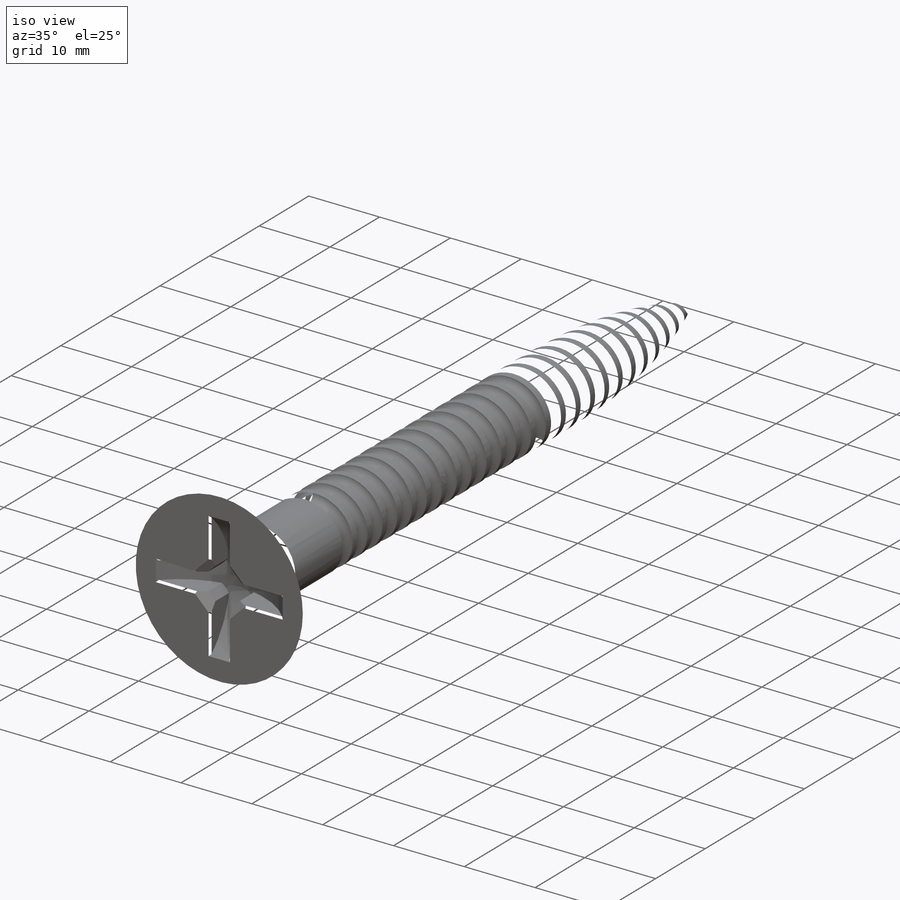
[diagram: iso view]
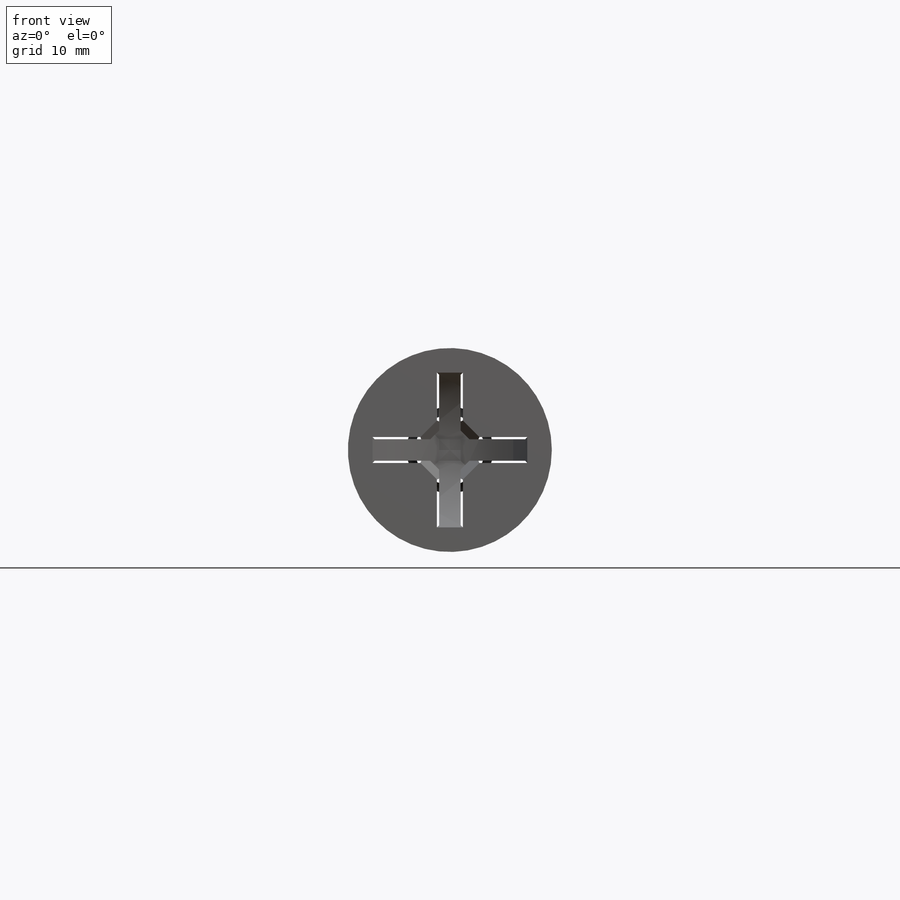
[diagram: front view]
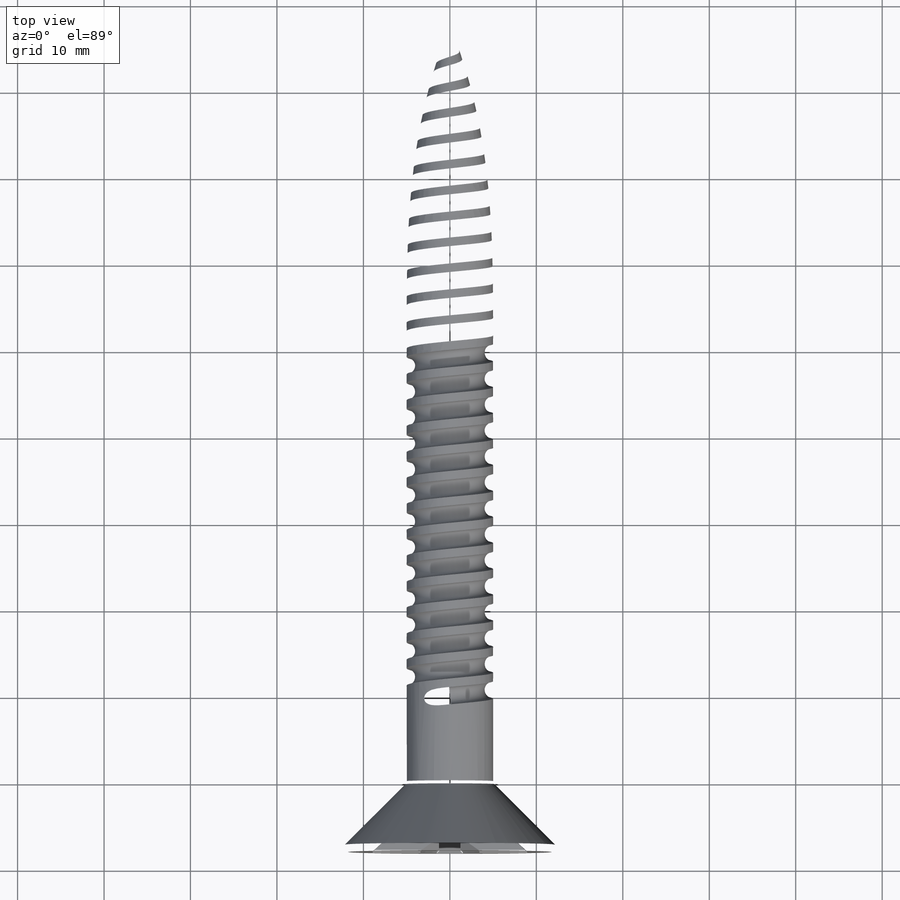
[diagram: top view]
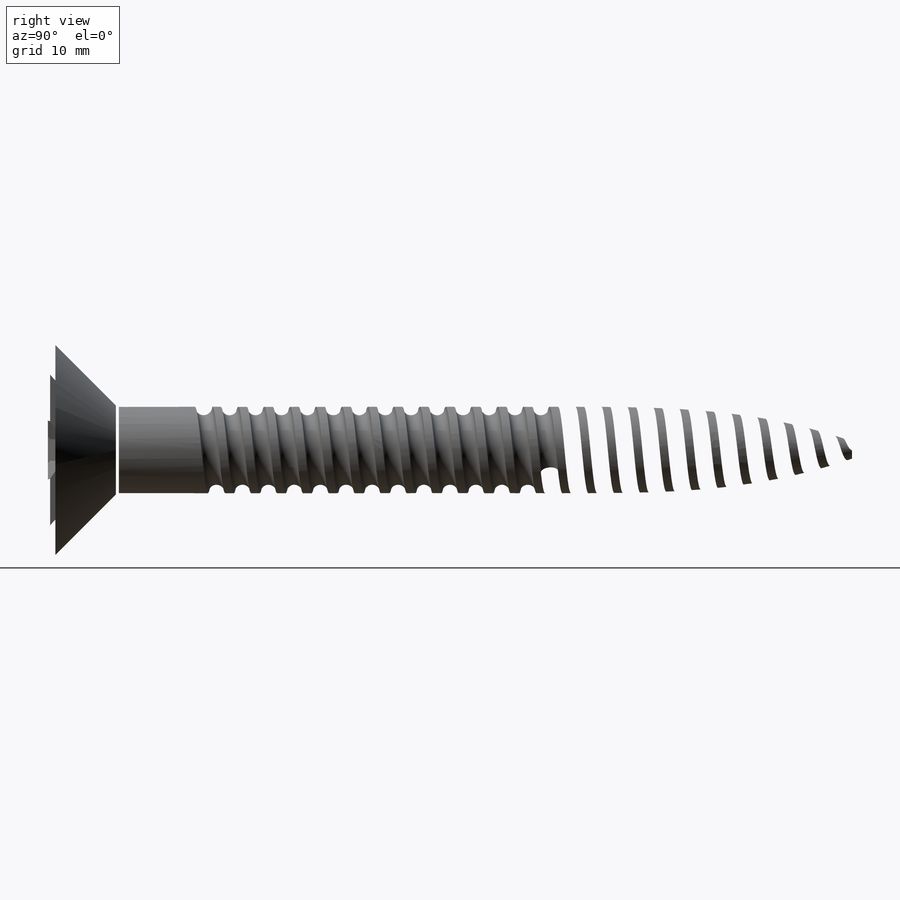
[diagram: right view]
SOLIDWORKS PART (.sldprt)
format: sldprt  version: not decoded by parser v0  size: 2,264,064 bytes
history: native  units: mm
features: sketch x9, plane x4, chamfer x3, material x1, revolve x1, extrude x1, cut_revolve x1, pattern_circular x1, helix x1, sweep x1, cut_extrude x1, fillet x1 (+8 scaffold rows collapsed)
feature tree (33):
  scaffold x8  (default folders/planes/origin — collapsed)
  material  "Material <nicht festgelegt>"
  plane  "Ebene vorne"
  plane  "Ebene oben"
  plane  "Ebene rechts"
  sketch  "Skizze1"  dims[D1=2.0mm D2=10.0mm D3=50.0mm D4=69.5mm D5=8.75mm D6=85.0mm]
  revolve  "Rotation1"  Angle=360deg
  sketch  "Skizze2"  dims[D1=0.0mm]
  extrude  "Aufsatz-Linear austragen1"  Depth=8mm
  sketch  "Skizze3"  dims[D1=2.5mm D2=4.0mm D3=12.0mm]
  cut_revolve  "Schnitt-Rotation1"  Angle=360deg
  pattern_circular  "Kreismuster1"  Count=4 Angle=360deg
  chamfer  "Fase1"  Distance=1mm Angle=45deg
  chamfer  "Fase2"  Distance=1mm Angle=45deg
  sketch  "Skizze4"  dims[D1=75.0mm]
  sketch  "Skizze5"  dims[D1=12.0mm]
  helix  "Spirale/Helix1"  Pitch=75mm
  sketch  "Skizze6"
  sketch  "3D-Skizze1"
  plane  "Ebene1"
  sketch  "Skizze7"  dims[D1=2.0mm]
  sweep  "Schnitt-Austragung4"
  sketch  "Skizze8"  dims[c1.D2=0.25mm c1.D3=~0.250964mm c2.D3=90.0deg c2.D1=0.0mm]
  cut_extrude  "Schnitt-Linear austragen1"  Depth=8mm
  fillet  "Verrundung1"  Radius=0.5mm
  chamfer  "Fase3"  Distance=0.25mm Angle=45deg
decode coverage: 17 of 20 modeling features carry decoded parameters
note: ~ marks probable driven/reference dimensions
note: suppression state not decoded; provenance and decode notes live in map.json
